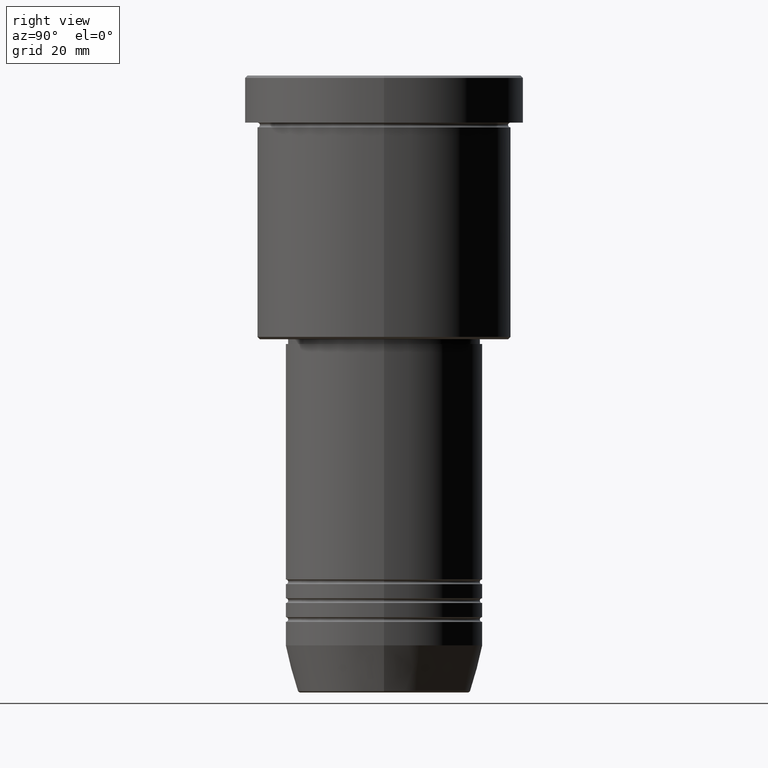
[diagram: clean part render]
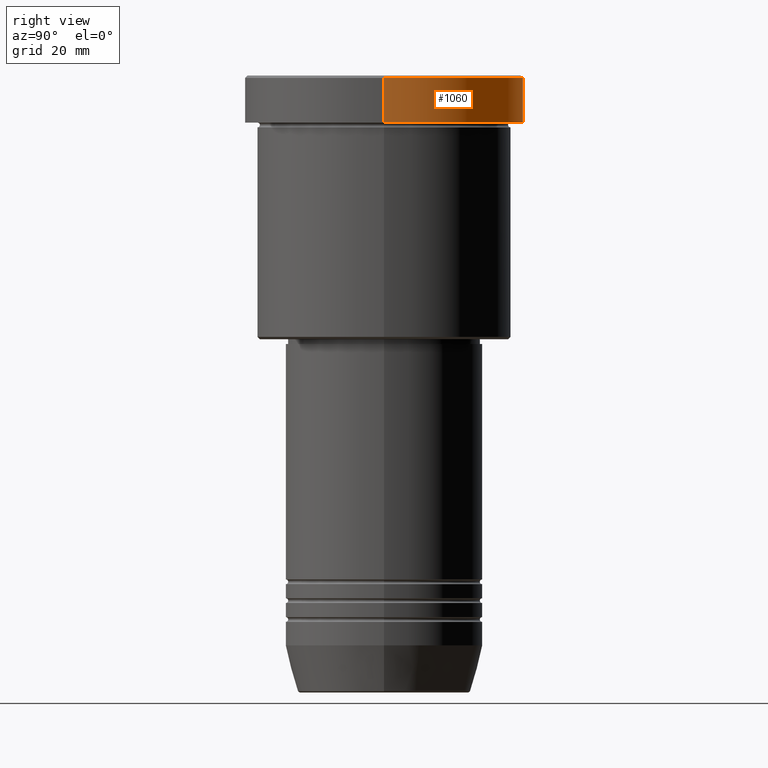
[diagram: same view with one face highlighted and labeled with its STEP entity id]
A machine part, right view. The second image highlights one B-rep face of the part: STEP entity #1060.
In plain terms, the highlighted cylindrical surface (partial cylindrical patch) has radius 29.5 mm, axis along (-0, -0, 1).
Its self-contained STEP definition (entity closure, byte-faithful):
#8 = LINE ( 'NONE', #374, #91 ) ;
#11 = DIRECTION ( 'NONE',  ( 1.000000000000000000, 0.000000000000000000, 0.000000000000000000 ) ) ;
#63 = CARTESIAN_POINT ( 'NONE',  ( -29.50000000000000000, 3.612708057484691604E-15, -0.4999999999999865663 ) ) ;
#91 = VECTOR ( 'NONE', #692, 1000.000000000000000 ) ;
#94 = AXIS2_PLACEMENT_3D ( 'NONE', #369, #580, #1101 ) ;
#97 = VERTEX_POINT ( 'NONE', #258 ) ;
#100 = ORIENTED_EDGE ( 'NONE', *, *, #1016, .F. ) ;
#120 = FACE_OUTER_BOUND ( 'NONE', #627, .T. ) ;
#143 = AXIS2_PLACEMENT_3D ( 'NONE', #278, #1009, #11 ) ;
#204 = CARTESIAN_POINT ( 'NONE',  ( 29.50000000000000000, 0.000000000000000000, 0.000000000000000000 ) ) ;
#241 = CIRCLE ( 'NONE', #94, 29.50000000000000000 ) ;
#258 = CARTESIAN_POINT ( 'NONE',  ( 29.50000000000000000, 0.000000000000000000, -0.4999999999999865663 ) ) ;
#278 = CARTESIAN_POINT ( 'NONE',  ( 0.000000000000000000, 0.000000000000000000, 0.000000000000000000 ) ) ;
#311 = EDGE_CURVE ( 'NONE', #459, #97, #839, .T. ) ;
#317 = DIRECTION ( 'NONE',  ( 0.000000000000000000, 0.000000000000000000, -1.000000000000000000 ) ) ;
#369 = CARTESIAN_POINT ( 'NONE',  ( 0.000000000000000000, 0.000000000000000000, -9.999999999999992895 ) ) ;
#374 = CARTESIAN_POINT ( 'NONE',  ( -29.50000000000000000, 3.612708057484691604E-15, 0.000000000000000000 ) ) ;
#459 = VERTEX_POINT ( 'NONE', #63 ) ;
#499 = DIRECTION ( 'NONE',  ( 1.000000000000000000, 0.000000000000000000, 0.000000000000000000 ) ) ;
#580 = DIRECTION ( 'NONE',  ( -0.000000000000000000, -0.000000000000000000, 1.000000000000000000 ) ) ;
#581 = EDGE_CURVE ( 'NONE', #1126, #1006, #241, .T. ) ;
#625 = AXIS2_PLACEMENT_3D ( 'NONE', #777, #317, #499 ) ;
#627 = EDGE_LOOP ( 'NONE', ( #1073, #1089, #1042, #100 ) ) ;
#656 = CARTESIAN_POINT ( 'NONE',  ( -29.50000000000000000, 3.612708057484691604E-15, -9.999999999999992895 ) ) ;
#692 = DIRECTION ( 'NONE',  ( -0.000000000000000000, -0.000000000000000000, 1.000000000000000000 ) ) ;
#724 = EDGE_CURVE ( 'NONE', #1006, #459, #8, .T. ) ;
#770 = CARTESIAN_POINT ( 'NONE',  ( 29.50000000000000000, 0.000000000000000000, -9.999999999999992895 ) ) ;
#773 = VECTOR ( 'NONE', #940, 1000.000000000000000 ) ;
#777 = CARTESIAN_POINT ( 'NONE',  ( 0.000000000000000000, 0.000000000000000000, -0.4999999999999865663 ) ) ;
#833 = LINE ( 'NONE', #204, #773 ) ;
#839 = CIRCLE ( 'NONE', #625, 29.50000000000000000 ) ;
#940 = DIRECTION ( 'NONE',  ( -0.000000000000000000, -0.000000000000000000, 1.000000000000000000 ) ) ;
#1006 = VERTEX_POINT ( 'NONE', #656 ) ;
#1009 = DIRECTION ( 'NONE',  ( -0.000000000000000000, -0.000000000000000000, 1.000000000000000000 ) ) ;
#1016 = EDGE_CURVE ( 'NONE', #1126, #97, #833, .T. ) ;
#1042 = ORIENTED_EDGE ( 'NONE', *, *, #311, .T. ) ;
#1060 = ADVANCED_FACE ( 'NONE', ( #120 ), #1097, .T. ) ;
#1073 = ORIENTED_EDGE ( 'NONE', *, *, #581, .T. ) ;
#1089 = ORIENTED_EDGE ( 'NONE', *, *, #724, .T. ) ;
#1097 = CYLINDRICAL_SURFACE ( 'NONE', #143, 29.50000000000000000 ) ;
#1101 = DIRECTION ( 'NONE',  ( 1.000000000000000000, 0.000000000000000000, 0.000000000000000000 ) ) ;
#1126 = VERTEX_POINT ( 'NONE', #770 ) ;